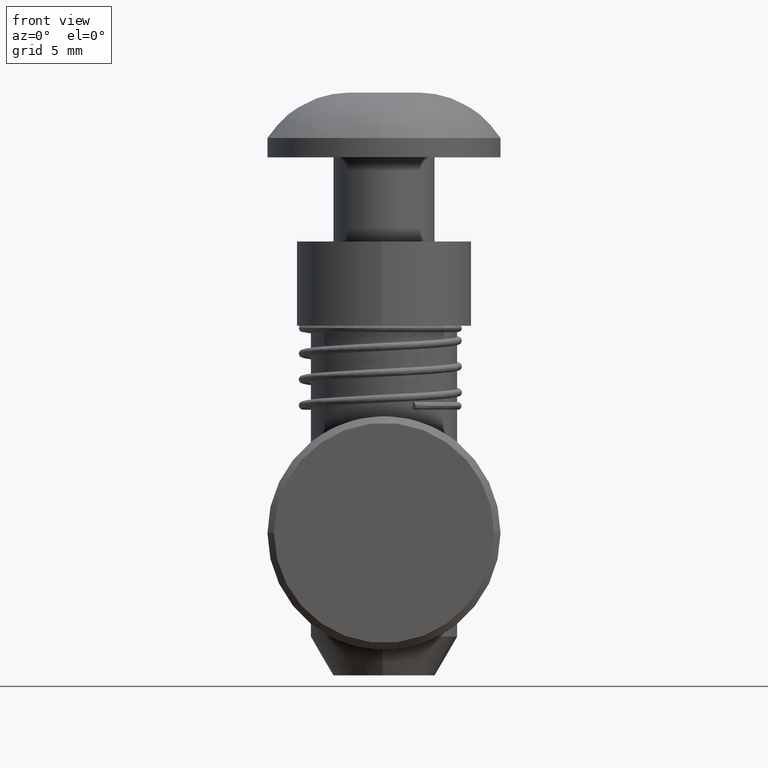
[diagram: clean part render]
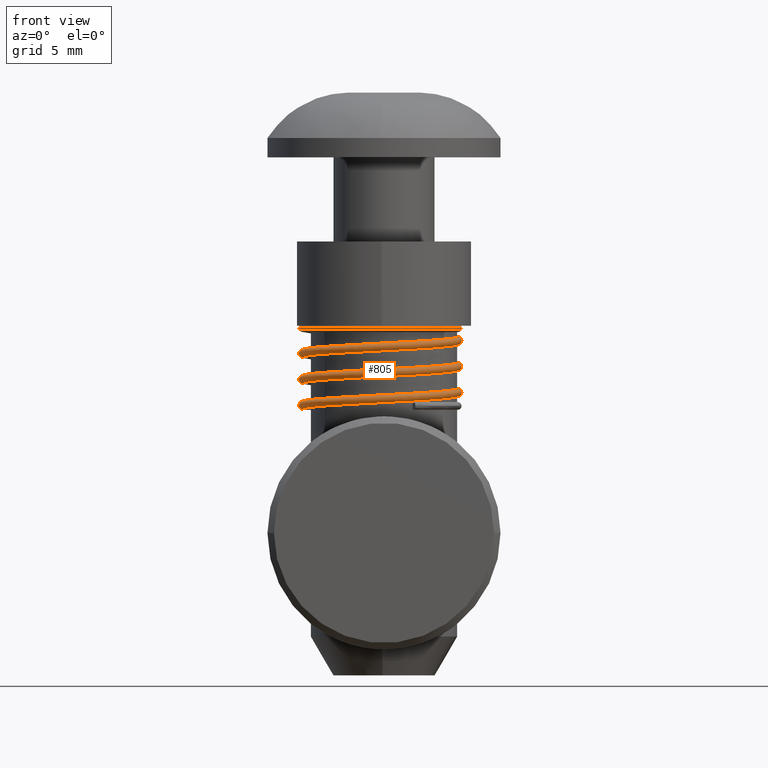
[diagram: same view with one face highlighted and labeled with its STEP entity id]
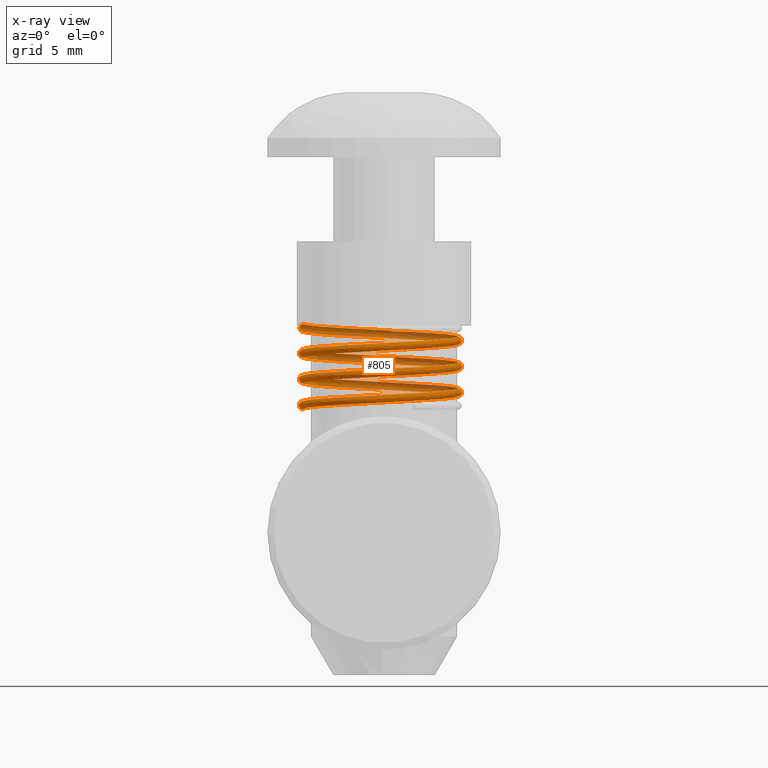
[diagram: x-ray of the same camera — body ghosted, the highlighted face saturated]
A machine part, front view. The second image highlights one B-rep face of the part: STEP entity #805.
The next image is the same camera in x-ray: the body ghosted, the highlighted face saturated — about 42% of this face is hidden behind the body in this view.
In plain terms, the highlighted face is a freeform B-spline surface patch.
Its self-contained STEP definition (entity closure, byte-faithful):
#1 = EDGE_CURVE ( 'NONE', #1532, #65, #78, .T. ) ;
#2 = EDGE_CURVE ( 'NONE', #1538, #1532, #875, .T. ) ;
#3 = EDGE_CURVE ( 'NONE', #1534, #3110, #1435, .T. ) ;
#34 = EDGE_CURVE ( 'NONE', #1530, #1539, #79, .T. ) ;
#39 = EDGE_CURVE ( 'NONE', #65, #1546, #919, .T. ) ;
#51 = EDGE_CURVE ( 'NONE', #1539, #1538, #1238, .T. ) ;
#57 = EDGE_CURVE ( 'NONE', #3110, #1530, #88, .T. ) ;
#61 = EDGE_CURVE ( 'NONE', #1546, #1542, #1245, .T. ) ;
#64 = EDGE_CURVE ( 'NONE', #1542, #1534, #91, .T. ) ;
#65 = VERTEX_POINT ( 'NONE', #198 ) ;
#78 =( BOUNDED_CURVE ( )  B_SPLINE_CURVE ( 2, ( #921, #922, #923, #924, #925, #926, #927, #928, #929, #930, #931, #932, #933, #934, #935, #936, #937, #938, #939, #940, #941, #942, #943, #944, #945, #946, #947, #948, #949, #950, #951, #952, #953, #954, #955, #956, #957 ),
 .UNSPECIFIED., .F., .T. ) 
 B_SPLINE_CURVE_WITH_KNOTS ( ( 3, 2, 2, 2, 2, 2, 2, 2, 2, 2, 2, 2, 2, 2, 2, 2, 2, 2, 3 ),
 ( 0.0000000000000000000, 0.05555555555555591300, 0.1111111111111108300, 0.1666666666666669600, 0.2222222222222219900, 0.2777777777777780100, 0.3333333333333329300, 0.3888888888888889500, 0.4444444444444439800, 0.5000000000000000000, 0.5555555555555559100, 0.6111111111111108300, 0.6666666666666669600, 0.7222222222222218800, 0.7777777777777779000, 0.8333333333333330400, 0.8888888888888889500, 0.9444444444444444200, 1.000000000000000000 ),
 .UNSPECIFIED. ) 
 CURVE ( )  GEOMETRIC_REPRESENTATION_ITEM ( )  RATIONAL_B_SPLINE_CURVE ( ( 1.000000000000000000, 0.8660254037844391500, 1.000000000000000000, 0.8660254037844391500, 1.000000000000000000, 0.8660254037844391500, 1.000000000000000000, 0.8660254037844391500, 1.000000000000000000, 0.8660254037844391500, 1.000000000000000000, 0.8660254037844391500, 1.000000000000000000, 0.8660254037844391500, 1.000000000000000000, 0.8660254037844391500, 1.000000000000000000, 0.8660254037844391500, 1.000000000000000000, 0.8660254037844391500, 1.000000000000000000, 0.8660254037844391500, 1.000000000000000000, 0.8660254037844391500, 1.000000000000000000, 0.8660254037844391500, 1.000000000000000000, 0.8660254037844391500, 1.000000000000000000, 0.8660254037844391500, 1.000000000000000000, 0.8660254037844391500, 1.000000000000000000, 0.8660254037844391500, 1.000000000000000000, 0.8660254037844391500, 1.000000000000000000 ) ) 
 REPRESENTATION_ITEM ( '' )  );
#79 =( BOUNDED_CURVE ( )  B_SPLINE_CURVE ( 2, ( #1147, #1148, #1149, #1150, #1151 ),
 .UNSPECIFIED., .F., .T. ) 
 B_SPLINE_CURVE_WITH_KNOTS ( ( 3, 2, 3 ),
 ( 0.9166666666666666300, 0.9444444444444440900, 1.000000000000000000 ),
 .UNSPECIFIED. ) 
 CURVE ( )  GEOMETRIC_REPRESENTATION_ITEM ( )  RATIONAL_B_SPLINE_CURVE ( ( 0.9330127018922196300, 0.9330127018922196300, 1.000000000000000000, 0.8660254037844391500, 1.000000000000000000 ) ) 
 REPRESENTATION_ITEM ( '' )  );
#88 =( BOUNDED_CURVE ( )  B_SPLINE_CURVE ( 3, ( #118, #119, #120, #121 ),
 .UNSPECIFIED., .F., .F. ) 
 B_SPLINE_CURVE_WITH_KNOTS ( ( 4, 4 ),
 ( 1.518748015271368300E-013, 0.0001745487111604489500 ),
 .UNSPECIFIED. ) 
 CURVE ( )  GEOMETRIC_REPRESENTATION_ITEM ( )  RATIONAL_B_SPLINE_CURVE ( ( 0.6008695571878666100, 0.6782022967236381900, 0.7889166782917558200, 0.9330127018922196300 ) ) 
 REPRESENTATION_ITEM ( '' )  );
#91 =( BOUNDED_CURVE ( )  B_SPLINE_CURVE ( 2, ( #159, #160, #161, #162, #163, #164, #165, #166, #167, #168, #170, #172, #173, #174, #175, #176, #177, #178, #179, #180, #181, #182, #183, #184, #185, #187, #189, #190, #191, #192, #193, #194, #195, #196, #197 ),
 .UNSPECIFIED., .F., .F. ) 
 B_SPLINE_CURVE_WITH_KNOTS ( ( 3, 2, 2, 2, 2, 2, 2, 2, 2, 2, 2, 2, 2, 2, 2, 2, 2, 3 ),
 ( 0.0000000000000000000, 0.05555555555555560800, 0.1111111111111110200, 0.1666666666666670200, 0.2222222222222220400, 0.2777777777777780100, 0.3333333333333330900, 0.3888888888888891200, 0.4444444444444440900, 0.5000000000000000000, 0.5555555555555560200, 0.6111111111111110500, 0.6666666666666670700, 0.7222222222222219900, 0.7777777777777780100, 0.8333333333333330400, 0.8888888888888891700, 0.9007498850838536700 ),
 .UNSPECIFIED. ) 
 CURVE ( )  GEOMETRIC_REPRESENTATION_ITEM ( )  RATIONAL_B_SPLINE_CURVE ( ( 1.000000000000000000, 0.8660254037844391500, 1.000000000000000000, 0.8660254037844391500, 1.000000000000000000, 0.8660254037844391500, 1.000000000000000000, 0.8660254037844391500, 1.000000000000000000, 0.8660254037844391500, 1.000000000000000000, 0.8660254037844391500, 1.000000000000000000, 0.8660254037844391500, 1.000000000000000000, 0.8660254037844391500, 1.000000000000000000, 0.8660254037844391500, 1.000000000000000000, 0.8660254037844391500, 1.000000000000000000, 0.8660254037844391500, 1.000000000000000000, 0.8660254037844391500, 1.000000000000000000, 0.8660254037844391500, 1.000000000000000000, 0.8660254037844391500, 1.000000000000000000, 0.8660254037844391500, 1.000000000000000000, 0.8660254037844391500, 1.000000000000000000, 0.9713967008331756400, 0.9550068920792722500 ) ) 
 REPRESENTATION_ITEM ( '' )  );
#96 =( BOUNDED_SURFACE ( )  B_SPLINE_SURFACE ( 3, 2, ( 
 ( #1696, #1697, #1698, #1699, #1700, #1701, #1702, #1703, #1704, #1705, #1706, #1707, #1708, #1709, #1710, #1711, #1712, #1713, #1714, #1715, #1716, #1717, #1718, #1719, #1720, #1721, #1722, #1723, #1724, #1725, #1726, #1727, #1728, #1729, #1730, #1731, #1732 ),
 ( #1733, #1734, #1735, #1736, #1737, #1738, #1739, #1740, #1741, #1742, #1743, #1744, #1745, #1746, #1747, #1748, #1749, #1750, #1751, #1752, #1753, #1754, #1755, #1756, #1757, #1758, #1759, #1760, #1761, #1762, #1763, #1764, #1765, #1766, #1767, #1768, #1769 ),
 ( #1770, #1771, #1772, #1773, #1774, #1775, #1776, #1777, #1778, #1779, #1780, #1781, #1782, #1783, #1784, #1785, #1786, #1787, #1788, #1789, #1790, #1791, #1792, #1793, #1794, #1795, #1796, #1797, #1798, #1799, #1800, #1801, #1802, #1803, #1804, #1805, #1806 ),
 ( #1807, #1808, #1809, #1810, #1811, #1812, #1813, #1814, #1815, #1816, #1817, #1818, #1819, #1820, #1821, #1822, #1823, #1824, #1825, #1826, #1827, #1828, #1829, #1830, #1831, #1832, #1833, #1834, #1835, #1836, #1837, #1838, #1839, #1840, #1841, #1842, #1843 ) ),
 .UNSPECIFIED., .F., .F., .F. ) 
 B_SPLINE_SURFACE_WITH_KNOTS ( ( 4, 4 ),
 ( 3, 2, 2, 2, 2, 2, 2, 2, 2, 2, 2, 2, 2, 2, 2, 2, 2, 2, 3 ),
 ( 0.0000000000000000000, 0.5000000000000000000 ),
 ( 0.0000000000000000000, 0.05555555555555560800, 0.1111111111111110200, 0.1666666666666670200, 0.2222222222222220400, 0.2777777777777780700, 0.3333333333333330400, 0.3888888888888891700, 0.4444444444444440900, 0.5000000000000000000, 0.5555555555555560200, 0.6111111111111110500, 0.6666666666666670700, 0.7222222222222219900, 0.7777777777777780100, 0.8333333333333330400, 0.8888888888888891700, 0.9444444444444440900, 1.000000000000000000 ),
 .UNSPECIFIED. ) 
 GEOMETRIC_REPRESENTATION_ITEM ( )  RATIONAL_B_SPLINE_SURFACE ( (
 ( 1.000000000000000000, 0.8660254037844391500, 1.000000000000000000, 0.8660254037844391500, 1.000000000000000000, 0.8660254037844391500, 1.000000000000000000, 0.8660254037844391500, 1.000000000000000000, 0.8660254037844391500, 1.000000000000000000, 0.8660254037844391500, 1.000000000000000000, 0.8660254037844391500, 1.000000000000000000, 0.8660254037844391500, 1.000000000000000000, 0.8660254037844391500, 1.000000000000000000, 0.8660254037844391500, 1.000000000000000000, 0.8660254037844391500, 1.000000000000000000, 0.8660254037844391500, 1.000000000000000000, 0.8660254037844391500, 1.000000000000000000, 0.8660254037844391500, 1.000000000000000000, 0.8660254037844391500, 1.000000000000000000, 0.8660254037844391500, 1.000000000000000000, 0.8660254037844391500, 1.000000000000000000, 0.8660254037844391500, 1.000000000000000000),
 ( 0.3333333333333340400, 0.2886751345948130300, 0.3333333333333340400, 0.2886751345948130300, 0.3333333333333340400, 0.2886751345948130300, 0.3333333333333340400, 0.2886751345948130300, 0.3333333333333340400, 0.2886751345948130300, 0.3333333333333340400, 0.2886751345948130300, 0.3333333333333340400, 0.2886751345948130300, 0.3333333333333340400, 0.2886751345948130300, 0.3333333333333340400, 0.2886751345948130300, 0.3333333333333340400, 0.2886751345948130300, 0.3333333333333340400, 0.2886751345948130300, 0.3333333333333340400, 0.2886751345948130300, 0.3333333333333340400, 0.2886751345948130300, 0.3333333333333340400, 0.2886751345948130300, 0.3333333333333340400, 0.2886751345948130300, 0.3333333333333340400, 0.2886751345948130300, 0.3333333333333340400, 0.2886751345948130300, 0.3333333333333340400, 0.2886751345948130300, 0.3333333333333340400),
 ( 0.3333333333333330400, 0.2886751345948120300, 0.3333333333333330400, 0.2886751345948120300, 0.3333333333333330400, 0.2886751345948120300, 0.3333333333333330400, 0.2886751345948120300, 0.3333333333333330400, 0.2886751345948120300, 0.3333333333333330400, 0.2886751345948120300, 0.3333333333333330400, 0.2886751345948120300, 0.3333333333333330400, 0.2886751345948120300, 0.3333333333333330400, 0.2886751345948120300, 0.3333333333333330400, 0.2886751345948120300, 0.3333333333333330400, 0.2886751345948120300, 0.3333333333333330400, 0.2886751345948120300, 0.3333333333333330400, 0.2886751345948120300, 0.3333333333333330400, 0.2886751345948120300, 0.3333333333333330400, 0.2886751345948120300, 0.3333333333333330400, 0.2886751345948120300, 0.3333333333333330400, 0.2886751345948120300, 0.3333333333333330400, 0.2886751345948120300, 0.3333333333333330400),
 ( 1.000000000000000000, 0.8660254037844391500, 1.000000000000000000, 0.8660254037844391500, 1.000000000000000000, 0.8660254037844391500, 1.000000000000000000, 0.8660254037844391500, 1.000000000000000000, 0.8660254037844391500, 1.000000000000000000, 0.8660254037844391500, 1.000000000000000000, 0.8660254037844391500, 1.000000000000000000, 0.8660254037844391500, 1.000000000000000000, 0.8660254037844391500, 1.000000000000000000, 0.8660254037844391500, 1.000000000000000000, 0.8660254037844391500, 1.000000000000000000, 0.8660254037844391500, 1.000000000000000000, 0.8660254037844391500, 1.000000000000000000, 0.8660254037844391500, 1.000000000000000000, 0.8660254037844391500, 1.000000000000000000, 0.8660254037844391500, 1.000000000000000000, 0.8660254037844391500, 1.000000000000000000, 0.8660254037844391500, 1.000000000000000000) ) ) 
 REPRESENTATION_ITEM ( '' )  SURFACE ( )  );
#118 = CARTESIAN_POINT ( 'NONE',  ( 0.0000000000000000000, 6.165831239628167800, -5.750000000128360400 ) ) ;
#119 = CARTESIAN_POINT ( 'NONE',  ( 0.0000000000000000000, 6.112714336002199800, -5.785233767773888800 ) ) ;
#120 = CARTESIAN_POINT ( 'NONE',  ( 0.0000000000000000000, 6.054795149198174200, -5.800000000000000700 ) ) ;
#121 = CARTESIAN_POINT ( 'NONE',  ( 0.0000000000000000000, 6.000000000011744400, -5.800000000000000700 ) ) ;
#147 = CARTESIAN_POINT ( 'NONE',  ( 6.000000000000000000, 0.0000000000000000000, 0.0000000000000000000 ) ) ;
#148 = DIRECTION ( 'NONE',  ( -0.0000000000000000000, 1.000000000000000000, -0.0000000000000000000 ) ) ;
#149 = DIRECTION ( 'NONE',  ( 0.0000000000000000000, 0.0000000000000000000, 1.000000000000000000 ) ) ;
#159 = CARTESIAN_POINT ( 'NONE',  ( 6.000000000000000900, 0.0000000000000000000, -0.2999999999999999900 ) ) ;
#160 = CARTESIAN_POINT ( 'NONE',  ( 6.000000000000000000, -3.464101615000000600, -0.4666666670000001500 ) ) ;
#161 = CARTESIAN_POINT ( 'NONE',  ( 3.000000000000000000, -5.196152423000000000, -0.6333333330000000500 ) ) ;
#162 = CARTESIAN_POINT ( 'NONE',  ( 0.0000000000000000000, -6.928203230000001200, -0.8000000000000000400 ) ) ;
#163 = CARTESIAN_POINT ( 'NONE',  ( -3.000000000000000000, -5.196152423000000000, -0.9666666670000000300 ) ) ;
#164 = CARTESIAN_POINT ( 'NONE',  ( -6.000000000000000000, -3.464101615000000600, -1.133333333000000200 ) ) ;
#165 = CARTESIAN_POINT ( 'NONE',  ( -6.000000000000000000, 0.0000000000000000000, -1.300000000000000300 ) ) ;
#166 = CARTESIAN_POINT ( 'NONE',  ( -6.000000000000000000, 3.464101615000000600, -1.466666666999999900 ) ) ;
#167 = CARTESIAN_POINT ( 'NONE',  ( -3.000000000000000000, 5.196152423000000000, -1.633333332999999900 ) ) ;
#168 = CARTESIAN_POINT ( 'NONE',  ( 0.0000000000000000000, 6.928203230000001200, -1.800000000000000300 ) ) ;
#170 = CARTESIAN_POINT ( 'NONE',  ( 3.000000000000000000, 5.196152423000000000, -1.966666666999999700 ) ) ;
#172 = CARTESIAN_POINT ( 'NONE',  ( 6.000000000000000000, 3.464101615000000600, -2.133333332999999900 ) ) ;
#173 = CARTESIAN_POINT ( 'NONE',  ( 6.000000000000000000, 0.0000000000000000000, -2.299999999999999800 ) ) ;
#174 = CARTESIAN_POINT ( 'NONE',  ( 6.000000000000000000, -3.464101615000000600, -2.466666666999999700 ) ) ;
#175 = CARTESIAN_POINT ( 'NONE',  ( 3.000000000000000000, -5.196152423000000000, -2.633333332999999900 ) ) ;
#176 = CARTESIAN_POINT ( 'NONE',  ( 0.0000000000000000000, -6.928203230000001200, -2.799999999999999400 ) ) ;
#177 = CARTESIAN_POINT ( 'NONE',  ( -3.000000000000000000, -5.196152423000000000, -2.966666666999999700 ) ) ;
#178 = CARTESIAN_POINT ( 'NONE',  ( -6.000000000000000000, -3.464101615000000600, -3.133333333000000400 ) ) ;
#179 = CARTESIAN_POINT ( 'NONE',  ( -6.000000000000000000, 0.0000000000000000000, -3.299999999999999800 ) ) ;
#180 = CARTESIAN_POINT ( 'NONE',  ( -6.000000000000000000, 3.464101615000000600, -3.466666666999999300 ) ) ;
#181 = CARTESIAN_POINT ( 'NONE',  ( -3.000000000000000000, 5.196152423000000000, -3.633333332999999900 ) ) ;
#182 = CARTESIAN_POINT ( 'NONE',  ( 0.0000000000000000000, 6.928203230000001200, -3.799999999999998900 ) ) ;
#183 = CARTESIAN_POINT ( 'NONE',  ( 3.000000000000000000, 5.196152423000000000, -3.966666667000000100 ) ) ;
#184 = CARTESIAN_POINT ( 'NONE',  ( 6.000000000000000000, 3.464101615000000600, -4.133333333000000400 ) ) ;
#185 = CARTESIAN_POINT ( 'NONE',  ( 6.000000000000000000, 0.0000000000000000000, -4.299999999999999800 ) ) ;
#187 = CARTESIAN_POINT ( 'NONE',  ( 6.000000000000000000, -3.464101615000000600, -4.466666667000000100 ) ) ;
#189 = CARTESIAN_POINT ( 'NONE',  ( 3.000000000000000000, -5.196152423000000000, -4.633333333000000400 ) ) ;
#190 = CARTESIAN_POINT ( 'NONE',  ( 0.0000000000000000000, -6.928203230000001200, -4.799999999999999800 ) ) ;
#191 = CARTESIAN_POINT ( 'NONE',  ( -3.000000000000000000, -5.196152423000000000, -4.966666667000000100 ) ) ;
#192 = CARTESIAN_POINT ( 'NONE',  ( -6.000000000000000000, -3.464101615000000600, -5.133333333000000400 ) ) ;
#193 = CARTESIAN_POINT ( 'NONE',  ( -6.000000000000000000, 0.0000000000000000000, -5.299999999999999800 ) ) ;
#194 = CARTESIAN_POINT ( 'NONE',  ( -6.000000000000000000, 3.464101615000000600, -5.466666667000001000 ) ) ;
#195 = CARTESIAN_POINT ( 'NONE',  ( -3.000000000000000000, 5.196152423000000000, -5.633333333000000400 ) ) ;
#196 = CARTESIAN_POINT ( 'NONE',  ( -2.428983136805118000, 5.525829162569101200, -5.665056492129829200 ) ) ;
#197 = CARTESIAN_POINT ( 'NONE',  ( -1.800000005439359500, 5.723635206887379900, -5.699999999497435100 ) ) ;
#198 = CARTESIAN_POINT ( 'NONE',  ( 6.000000000000000900, 0.0000000000000000000, 0.2999999999999999900 ) ) ;
#805 = ADVANCED_FACE ( 'NONE', ( #1259 ), #96, .F. ) ;
#875 = CIRCLE ( 'NONE', #1512, 0.2999999999999999300 ) ;
#919 = CIRCLE ( 'NONE', #3128, 0.2999999999999999300 ) ;
#921 = CARTESIAN_POINT ( 'NONE',  ( 6.000000000000000900, 0.0000000000000000000, -5.700000000000000200 ) ) ;
#922 = CARTESIAN_POINT ( 'NONE',  ( 6.000000000000000000, 3.464101615000000600, -5.533333333000000700 ) ) ;
#923 = CARTESIAN_POINT ( 'NONE',  ( 3.000000000000000000, 5.196152423000000000, -5.366666666999999600 ) ) ;
#924 = CARTESIAN_POINT ( 'NONE',  ( 0.0000000000000000000, 6.928203230000001200, -5.200000000000001100 ) ) ;
#925 = CARTESIAN_POINT ( 'NONE',  ( -3.000000000000000000, 5.196152423000000000, -5.033333333000000700 ) ) ;
#926 = CARTESIAN_POINT ( 'NONE',  ( -6.000000000000000000, 3.464101615000000600, -4.866666667000000500 ) ) ;
#927 = CARTESIAN_POINT ( 'NONE',  ( -6.000000000000000000, 0.0000000000000000000, -4.700000000000000200 ) ) ;
#928 = CARTESIAN_POINT ( 'NONE',  ( -6.000000000000000000, -3.464101615000000600, -4.533333332999999900 ) ) ;
#929 = CARTESIAN_POINT ( 'NONE',  ( -3.000000000000000000, -5.196152423000000000, -4.366666666999999600 ) ) ;
#930 = CARTESIAN_POINT ( 'NONE',  ( 0.0000000000000000000, -6.928203230000001200, -4.200000000000000200 ) ) ;
#931 = CARTESIAN_POINT ( 'NONE',  ( 3.000000000000000000, -5.196152423000000000, -4.033333333000000700 ) ) ;
#932 = CARTESIAN_POINT ( 'NONE',  ( 6.000000000000000000, -3.464101615000000600, -3.866666667000000100 ) ) ;
#933 = CARTESIAN_POINT ( 'NONE',  ( 6.000000000000000000, 0.0000000000000000000, -3.700000000000000200 ) ) ;
#934 = CARTESIAN_POINT ( 'NONE',  ( 6.000000000000000000, 3.464101615000000600, -3.533333332999999400 ) ) ;
#935 = CARTESIAN_POINT ( 'NONE',  ( 3.000000000000000000, 5.196152423000000000, -3.366666667000000100 ) ) ;
#936 = CARTESIAN_POINT ( 'NONE',  ( 0.0000000000000000000, 6.928203230000001200, -3.200000000000000200 ) ) ;
#937 = CARTESIAN_POINT ( 'NONE',  ( -3.000000000000000000, 5.196152423000000000, -3.033333332999999900 ) ) ;
#938 = CARTESIAN_POINT ( 'NONE',  ( -6.000000000000000000, 3.464101615000000600, -2.866666667000000100 ) ) ;
#939 = CARTESIAN_POINT ( 'NONE',  ( -6.000000000000000000, 0.0000000000000000000, -2.700000000000000200 ) ) ;
#940 = CARTESIAN_POINT ( 'NONE',  ( -6.000000000000000000, -3.464101615000000600, -2.533333333000000300 ) ) ;
#941 = CARTESIAN_POINT ( 'NONE',  ( -3.000000000000000000, -5.196152423000000000, -2.366666667000000100 ) ) ;
#942 = CARTESIAN_POINT ( 'NONE',  ( 0.0000000000000000000, -6.928203230000001200, -2.200000000000000200 ) ) ;
#943 = CARTESIAN_POINT ( 'NONE',  ( 3.000000000000000000, -5.196152423000000000, -2.033333332999999900 ) ) ;
#944 = CARTESIAN_POINT ( 'NONE',  ( 6.000000000000000000, -3.464101615000000600, -1.866666666999999600 ) ) ;
#945 = CARTESIAN_POINT ( 'NONE',  ( 6.000000000000000000, 0.0000000000000000000, -1.700000000000000200 ) ) ;
#946 = CARTESIAN_POINT ( 'NONE',  ( 6.000000000000000000, 3.464101615000000600, -1.533333333000000100 ) ) ;
#947 = CARTESIAN_POINT ( 'NONE',  ( 3.000000000000000000, 5.196152423000000000, -1.366666666999999800 ) ) ;
#948 = CARTESIAN_POINT ( 'NONE',  ( 0.0000000000000000000, 6.928203230000001200, -1.200000000000000000 ) ) ;
#949 = CARTESIAN_POINT ( 'NONE',  ( -3.000000000000000000, 5.196152423000000000, -1.033333332999999900 ) ) ;
#950 = CARTESIAN_POINT ( 'NONE',  ( -6.000000000000000000, 3.464101615000000600, -0.8666666670000000600 ) ) ;
#951 = CARTESIAN_POINT ( 'NONE',  ( -6.000000000000000000, 0.0000000000000000000, -0.7000000000000000700 ) ) ;
#952 = CARTESIAN_POINT ( 'NONE',  ( -6.000000000000000000, -3.464101615000000600, -0.5333333329999999700 ) ) ;
#953 = CARTESIAN_POINT ( 'NONE',  ( -3.000000000000000000, -5.196152423000000000, -0.3666666670000001100 ) ) ;
#954 = CARTESIAN_POINT ( 'NONE',  ( 0.0000000000000000000, -6.928203230000001200, -0.2000000000000000100 ) ) ;
#955 = CARTESIAN_POINT ( 'NONE',  ( 3.000000000000000000, -5.196152423000000000, -0.03333333300000001400 ) ) ;
#956 = CARTESIAN_POINT ( 'NONE',  ( 6.000000000000000000, -3.464101615000000600, 0.1333333330000000000 ) ) ;
#957 = CARTESIAN_POINT ( 'NONE',  ( 6.000000000000000900, 0.0000000000000000000, 0.2999999999999999900 ) ) ;
#958 = CARTESIAN_POINT ( 'NONE',  ( 6.000000000000000000, 0.0000000000000000000, -6.000000000000000000 ) ) ;
#959 = DIRECTION ( 'NONE',  ( -0.0000000000000000000, -1.000000000000000000, -0.0000000000000000000 ) ) ;
#960 = DIRECTION ( 'NONE',  ( 0.0000000000000000000, 0.0000000000000000000, -1.000000000000000000 ) ) ;
#961 = CARTESIAN_POINT ( 'NONE',  ( -1.800000005439359500, 5.723635206887379900, -5.699999999497435100 ) ) ;
#962 = CARTESIAN_POINT ( 'NONE',  ( -1.801523066940337700, 5.728478265481133000, -5.700000000001089100 ) ) ;
#963 = CARTESIAN_POINT ( 'NONE',  ( -1.798448344967381400, 5.733371705571615400, -5.700116504152990000 ) ) ;
#964 = CARTESIAN_POINT ( 'NONE',  ( -1.792238280066827900, 5.741219877314455800, -5.700335331013143000 ) ) ;
#965 = CARTESIAN_POINT ( 'NONE',  ( -1.788639387743559100, 5.744570793696672300, -5.700452574451571100 ) ) ;
#966 = CARTESIAN_POINT ( 'NONE',  ( -1.777413971594689900, 5.754125954394425000, -5.700811034261917600 ) ) ;
#967 = CARTESIAN_POINT ( 'NONE',  ( -1.769247315730067700, 5.759750731536127200, -5.701061141121865500 ) ) ;
#968 = CARTESIAN_POINT ( 'NONE',  ( -1.744393488256532000, 5.775721961945068400, -5.701813044682785900 ) ) ;
#969 = CARTESIAN_POINT ( 'NONE',  ( -1.727166557771898400, 5.785138766167503600, -5.702320904115769200 ) ) ;
#970 = CARTESIAN_POINT ( 'NONE',  ( -1.674809389129967600, 5.812123543625071800, -5.703851756538086600 ) ) ;
#971 = CARTESIAN_POINT ( 'NONE',  ( -1.638860507559122900, 5.828257032405191200, -5.704884269814010100 ) ) ;
#972 = CARTESIAN_POINT ( 'NONE',  ( -1.530341773680880000, 5.873948275648407600, -5.707980939190955300 ) ) ;
#973 = CARTESIAN_POINT ( 'NONE',  ( -1.456719165821296300, 5.900714262240609500, -5.710053124993343100 ) ) ;
#974 = CARTESIAN_POINT ( 'NONE',  ( -1.233638726874410900, 5.974608149170459000, -5.716296212978330800 ) ) ;
#975 = CARTESIAN_POINT ( 'NONE',  ( -1.081516208370356900, 6.015049627796179800, -5.720503059015575400 ) ) ;
#976 = CARTESIAN_POINT ( 'NONE',  ( -0.6232708308326274600, 6.114857933577375200, -5.733104410119188400 ) ) ;
#977 = CARTESIAN_POINT ( 'NONE',  ( -0.3135355649654893400, 6.153054572514767200, -5.741524917856870600 ) ) ;
#978 = CARTESIAN_POINT ( 'NONE',  ( 0.0000000000000000000, 6.165831239628167800, -5.750000000128360400 ) ) ;
#1147 = CARTESIAN_POINT ( 'NONE',  ( 0.0000000000000000000, 6.000000000011744400, -5.800000000000000700 ) ) ;
#1148 = CARTESIAN_POINT ( 'NONE',  ( 1.607695154586736000, 6.000000000029352500, -5.889316397655673700 ) ) ;
#1149 = CARTESIAN_POINT ( 'NONE',  ( 3.000000000000000000, 5.196152423000000000, -5.966666667000000100 ) ) ;
#1150 = CARTESIAN_POINT ( 'NONE',  ( 6.000000000000000000, 3.464101615000000600, -6.133333333000000400 ) ) ;
#1151 = CARTESIAN_POINT ( 'NONE',  ( 6.000000000000000900, 0.0000000000000000000, -6.299999999999999800 ) ) ;
#1171 = CARTESIAN_POINT ( 'NONE',  ( 6.000000000000000000, 0.0000000000000000000, 0.0000000000000000000 ) ) ;
#1172 = DIRECTION ( 'NONE',  ( -0.0000000000000000000, 1.000000000000000000, -0.0000000000000000000 ) ) ;
#1173 = DIRECTION ( 'NONE',  ( 0.0000000000000000000, 0.0000000000000000000, 1.000000000000000000 ) ) ;
#1216 = CARTESIAN_POINT ( 'NONE',  ( 6.000000000000000000, 0.0000000000000000000, -6.000000000000000000 ) ) ;
#1217 = DIRECTION ( 'NONE',  ( 0.0000000000000000000, -1.000000000000000000, -0.0000000000000000000 ) ) ;
#1218 = DIRECTION ( 'NONE',  ( 0.0000000000000000000, 0.0000000000000000000, -1.000000000000000000 ) ) ;
#1238 = CIRCLE ( 'NONE', #2798, 0.2999999999999999300 ) ;
#1245 = CIRCLE ( 'NONE', #2803, 0.2999999999999999300 ) ;
#1259 = FACE_OUTER_BOUND ( 'NONE', #1458, .T. ) ;
#1375 = ORIENTED_EDGE ( 'NONE', *, *, #39, .F. ) ;
#1376 = ORIENTED_EDGE ( 'NONE', *, *, #1, .F. ) ;
#1377 = ORIENTED_EDGE ( 'NONE', *, *, #2, .F. ) ;
#1378 = ORIENTED_EDGE ( 'NONE', *, *, #34, .F. ) ;
#1379 = ORIENTED_EDGE ( 'NONE', *, *, #51, .F. ) ;
#1381 = ORIENTED_EDGE ( 'NONE', *, *, #57, .F. ) ;
#1435 = B_SPLINE_CURVE_WITH_KNOTS ( 'NONE', 3,
 ( #961, #962, #963, #964, #965, #966, #967, #968, #969, #970, #971, #972, #973, #974, #975, #976, #977, #978 ),
 .UNSPECIFIED., .F., .F.,
 ( 4, 2, 2, 2, 2, 2, 2, 2, 4 ),
 ( 1.793501302862484300E-012, 1.495029397719571300E-005, 2.990058616089012200E-005, 5.980117052828014800E-005, 0.0001196023392630582200, 0.0002392046767326150100, 0.0004784093516717275500, 0.0009568187015499542100, 0.001913637401306406700 ),
 .UNSPECIFIED. ) ;
#1458 = EDGE_LOOP ( 'NONE', ( #1375, #1376, #1377, #1379, #1378, #1381, #2980, #2977, #2979 ) ) ;
#1512 = AXIS2_PLACEMENT_3D ( 'NONE', #958, #959, #960 ) ;
#1530 = VERTEX_POINT ( 'NONE', #2296 ) ;
#1532 = VERTEX_POINT ( 'NONE', #2298 ) ;
#1534 = VERTEX_POINT ( 'NONE', #2300 ) ;
#1538 = VERTEX_POINT ( 'NONE', #2304 ) ;
#1539 = VERTEX_POINT ( 'NONE', #2305 ) ;
#1542 = VERTEX_POINT ( 'NONE', #2308 ) ;
#1546 = VERTEX_POINT ( 'NONE', #2312 ) ;
#1696 = CARTESIAN_POINT ( 'NONE',  ( 6.000000000000000000, 0.0000000000000000000, 0.3000000000000000400 ) ) ;
#1697 = CARTESIAN_POINT ( 'NONE',  ( 6.000000000000000900, -3.464101615000000100, 0.1333333330000000000 ) ) ;
#1698 = CARTESIAN_POINT ( 'NONE',  ( 3.000000000000000000, -5.196152423000000000, -0.03333333300000001400 ) ) ;
#1699 = CARTESIAN_POINT ( 'NONE',  ( 0.0000000000000000000, -6.928203230000000300, -0.2000000000000000100 ) ) ;
#1700 = CARTESIAN_POINT ( 'NONE',  ( -3.000000000000000000, -5.196152423000000000, -0.3666666670000001100 ) ) ;
#1701 = CARTESIAN_POINT ( 'NONE',  ( -6.000000000000000900, -3.464101615000000100, -0.5333333329999999700 ) ) ;
#1702 = CARTESIAN_POINT ( 'NONE',  ( -6.000000000000000000, 0.0000000000000000000, -0.7000000000000000700 ) ) ;
#1703 = CARTESIAN_POINT ( 'NONE',  ( -6.000000000000000900, 3.464101615000000100, -0.8666666670000000600 ) ) ;
#1704 = CARTESIAN_POINT ( 'NONE',  ( -3.000000000000000000, 5.196152423000000000, -1.033333332999999900 ) ) ;
#1705 = CARTESIAN_POINT ( 'NONE',  ( 0.0000000000000000000, 6.928203230000000300, -1.200000000000000000 ) ) ;
#1706 = CARTESIAN_POINT ( 'NONE',  ( 3.000000000000000000, 5.196152423000000000, -1.366666666999999800 ) ) ;
#1707 = CARTESIAN_POINT ( 'NONE',  ( 6.000000000000000900, 3.464101615000000100, -1.533333333000000100 ) ) ;
#1708 = CARTESIAN_POINT ( 'NONE',  ( 6.000000000000000000, 0.0000000000000000000, -1.700000000000000200 ) ) ;
#1709 = CARTESIAN_POINT ( 'NONE',  ( 6.000000000000000900, -3.464101615000000100, -1.866666666999999400 ) ) ;
#1710 = CARTESIAN_POINT ( 'NONE',  ( 3.000000000000000000, -5.196152423000000000, -2.033333332999999900 ) ) ;
#1711 = CARTESIAN_POINT ( 'NONE',  ( 0.0000000000000000000, -6.928203230000000300, -2.200000000000000200 ) ) ;
#1712 = CARTESIAN_POINT ( 'NONE',  ( -3.000000000000000000, -5.196152423000000000, -2.366666667000000100 ) ) ;
#1713 = CARTESIAN_POINT ( 'NONE',  ( -6.000000000000000900, -3.464101615000000100, -2.533333333000000300 ) ) ;
#1714 = CARTESIAN_POINT ( 'NONE',  ( -6.000000000000000000, 0.0000000000000000000, -2.700000000000000200 ) ) ;
#1715 = CARTESIAN_POINT ( 'NONE',  ( -6.000000000000000900, 3.464101615000000100, -2.866666666999999200 ) ) ;
#1716 = CARTESIAN_POINT ( 'NONE',  ( -3.000000000000000000, 5.196152423000000000, -3.033333332999999900 ) ) ;
#1717 = CARTESIAN_POINT ( 'NONE',  ( 0.0000000000000000000, 6.928203230000000300, -3.200000000000000200 ) ) ;
#1718 = CARTESIAN_POINT ( 'NONE',  ( 3.000000000000000000, 5.196152423000000000, -3.366666667000000100 ) ) ;
#1719 = CARTESIAN_POINT ( 'NONE',  ( 6.000000000000000900, 3.464101615000000100, -3.533333332999999400 ) ) ;
#1720 = CARTESIAN_POINT ( 'NONE',  ( 6.000000000000000000, 0.0000000000000000000, -3.700000000000000200 ) ) ;
#1721 = CARTESIAN_POINT ( 'NONE',  ( 6.000000000000000900, -3.464101615000000100, -3.866666667000000100 ) ) ;
#1722 = CARTESIAN_POINT ( 'NONE',  ( 3.000000000000000000, -5.196152423000000000, -4.033333333000000700 ) ) ;
#1723 = CARTESIAN_POINT ( 'NONE',  ( 0.0000000000000000000, -6.928203230000000300, -4.200000000000001100 ) ) ;
#1724 = CARTESIAN_POINT ( 'NONE',  ( -3.000000000000000000, -5.196152423000000000, -4.366666666999999600 ) ) ;
#1725 = CARTESIAN_POINT ( 'NONE',  ( -6.000000000000000900, -3.464101615000000100, -4.533333332999999000 ) ) ;
#1726 = CARTESIAN_POINT ( 'NONE',  ( -6.000000000000000000, 0.0000000000000000000, -4.700000000000000200 ) ) ;
#1727 = CARTESIAN_POINT ( 'NONE',  ( -6.000000000000000900, 3.464101615000000100, -4.866666667000000500 ) ) ;
#1728 = CARTESIAN_POINT ( 'NONE',  ( -3.000000000000000000, 5.196152423000000000, -5.033333333000000700 ) ) ;
#1729 = CARTESIAN_POINT ( 'NONE',  ( 0.0000000000000000000, 6.928203230000000300, -5.200000000000000200 ) ) ;
#1730 = CARTESIAN_POINT ( 'NONE',  ( 3.000000000000000000, 5.196152423000000000, -5.366666666999999600 ) ) ;
#1731 = CARTESIAN_POINT ( 'NONE',  ( 6.000000000000000900, 3.464101615000000100, -5.533333333000000700 ) ) ;
#1732 = CARTESIAN_POINT ( 'NONE',  ( 6.000000000000000000, 0.0000000000000000000, -5.700000000000000200 ) ) ;
#1733 = CARTESIAN_POINT ( 'NONE',  ( 6.599999999999999600, 0.0000000000000000000, 0.3000000000000000400 ) ) ;
#1734 = CARTESIAN_POINT ( 'NONE',  ( 6.599999999999999600, -3.810511776999999900, 0.1333333330000000000 ) ) ;
#1735 = CARTESIAN_POINT ( 'NONE',  ( 3.299999999999999800, -5.715767665000000400, -0.03333333300000002100 ) ) ;
#1736 = CARTESIAN_POINT ( 'NONE',  ( 0.0000000000000000000, -7.621023553000000600, -0.2000000000000000100 ) ) ;
#1737 = CARTESIAN_POINT ( 'NONE',  ( -3.299999999999999800, -5.715767665000000400, -0.3666666670000001700 ) ) ;
#1738 = CARTESIAN_POINT ( 'NONE',  ( -6.599999999999999600, -3.810511776999999900, -0.5333333329999998500 ) ) ;
#1739 = CARTESIAN_POINT ( 'NONE',  ( -6.599999999999999600, 0.0000000000000000000, -0.7000000000000000700 ) ) ;
#1740 = CARTESIAN_POINT ( 'NONE',  ( -6.599999999999999600, 3.810511776999999900, -0.8666666669999999500 ) ) ;
#1741 = CARTESIAN_POINT ( 'NONE',  ( -3.299999999999999800, 5.715767665000000400, -1.033333332999999900 ) ) ;
#1742 = CARTESIAN_POINT ( 'NONE',  ( 0.0000000000000000000, 7.621023553000000600, -1.200000000000000000 ) ) ;
#1743 = CARTESIAN_POINT ( 'NONE',  ( 3.299999999999999800, 5.715767665000000400, -1.366666667000000100 ) ) ;
#1744 = CARTESIAN_POINT ( 'NONE',  ( 6.599999999999999600, 3.810511776999999900, -1.533333332999999900 ) ) ;
#1745 = CARTESIAN_POINT ( 'NONE',  ( 6.599999999999999600, 0.0000000000000000000, -1.700000000000000000 ) ) ;
#1746 = CARTESIAN_POINT ( 'NONE',  ( 6.599999999999999600, -3.810511776999999900, -1.866666666999999600 ) ) ;
#1747 = CARTESIAN_POINT ( 'NONE',  ( 3.299999999999999800, -5.715767665000000400, -2.033333333000000300 ) ) ;
#1748 = CARTESIAN_POINT ( 'NONE',  ( 0.0000000000000000000, -7.621023553000000600, -2.200000000000000200 ) ) ;
#1749 = CARTESIAN_POINT ( 'NONE',  ( -3.299999999999999800, -5.715767665000000400, -2.366666667000000100 ) ) ;
#1750 = CARTESIAN_POINT ( 'NONE',  ( -6.599999999999999600, -3.810511776999999900, -2.533333332999999900 ) ) ;
#1751 = CARTESIAN_POINT ( 'NONE',  ( -6.599999999999999600, 0.0000000000000000000, -2.700000000000000200 ) ) ;
#1752 = CARTESIAN_POINT ( 'NONE',  ( -6.599999999999999600, 3.810511776999999900, -2.866666666999999600 ) ) ;
#1753 = CARTESIAN_POINT ( 'NONE',  ( -3.299999999999999800, 5.715767665000000400, -3.033333333000000300 ) ) ;
#1754 = CARTESIAN_POINT ( 'NONE',  ( 0.0000000000000000000, 7.621023553000000600, -3.200000000000000200 ) ) ;
#1755 = CARTESIAN_POINT ( 'NONE',  ( 3.299999999999999800, 5.715767665000000400, -3.366666667000000500 ) ) ;
#1756 = CARTESIAN_POINT ( 'NONE',  ( 6.599999999999999600, 3.810511776999999900, -3.533333332999999900 ) ) ;
#1757 = CARTESIAN_POINT ( 'NONE',  ( 6.599999999999999600, 0.0000000000000000000, -3.700000000000000200 ) ) ;
#1758 = CARTESIAN_POINT ( 'NONE',  ( 6.599999999999999600, -3.810511776999999900, -3.866666667000000100 ) ) ;
#1759 = CARTESIAN_POINT ( 'NONE',  ( 3.299999999999999800, -5.715767665000000400, -4.033333333000000700 ) ) ;
#1760 = CARTESIAN_POINT ( 'NONE',  ( 0.0000000000000000000, -7.621023553000000600, -4.200000000000000200 ) ) ;
#1761 = CARTESIAN_POINT ( 'NONE',  ( -3.299999999999999800, -5.715767665000000400, -4.366666666999999600 ) ) ;
#1762 = CARTESIAN_POINT ( 'NONE',  ( -6.599999999999999600, -3.810511776999999900, -4.533333332999999000 ) ) ;
#1763 = CARTESIAN_POINT ( 'NONE',  ( -6.599999999999999600, 0.0000000000000000000, -4.700000000000000200 ) ) ;
#1764 = CARTESIAN_POINT ( 'NONE',  ( -6.599999999999999600, 3.810511776999999900, -4.866666667000000500 ) ) ;
#1765 = CARTESIAN_POINT ( 'NONE',  ( -3.299999999999999800, 5.715767665000000400, -5.033333333000000700 ) ) ;
#1766 = CARTESIAN_POINT ( 'NONE',  ( 0.0000000000000000000, 7.621023553000000600, -5.200000000000000200 ) ) ;
#1767 = CARTESIAN_POINT ( 'NONE',  ( 3.299999999999999800, 5.715767665000000400, -5.366666666999999600 ) ) ;
#1768 = CARTESIAN_POINT ( 'NONE',  ( 6.599999999999999600, 3.810511776999999900, -5.533333332999999900 ) ) ;
#1769 = CARTESIAN_POINT ( 'NONE',  ( 6.599999999999999600, 0.0000000000000000000, -5.700000000000000200 ) ) ;
#1770 = CARTESIAN_POINT ( 'NONE',  ( 6.599999999999999600, 0.0000000000000000000, -0.3000000000000000400 ) ) ;
#1771 = CARTESIAN_POINT ( 'NONE',  ( 6.599999999999998800, -3.810511776999999900, -0.4666666670000001500 ) ) ;
#1772 = CARTESIAN_POINT ( 'NONE',  ( 3.299999999999999800, -5.715767665000000400, -0.6333333330000001600 ) ) ;
#1773 = CARTESIAN_POINT ( 'NONE',  ( 0.0000000000000000000, -7.621023552999999700, -0.8000000000000000400 ) ) ;
#1774 = CARTESIAN_POINT ( 'NONE',  ( -3.299999999999999800, -5.715767665000000400, -0.9666666669999999200 ) ) ;
#1775 = CARTESIAN_POINT ( 'NONE',  ( -6.599999999999998800, -3.810511776999999900, -1.133333333000000200 ) ) ;
#1776 = CARTESIAN_POINT ( 'NONE',  ( -6.599999999999999600, 0.0000000000000000000, -1.300000000000000300 ) ) ;
#1777 = CARTESIAN_POINT ( 'NONE',  ( -6.599999999999998800, 3.810511776999999900, -1.466666666999999500 ) ) ;
#1778 = CARTESIAN_POINT ( 'NONE',  ( -3.299999999999999800, 5.715767665000000400, -1.633333332999999900 ) ) ;
#1779 = CARTESIAN_POINT ( 'NONE',  ( 0.0000000000000000000, 7.621023552999999700, -1.800000000000000000 ) ) ;
#1780 = CARTESIAN_POINT ( 'NONE',  ( 3.299999999999999800, 5.715767665000000400, -1.966666666999999500 ) ) ;
#1781 = CARTESIAN_POINT ( 'NONE',  ( 6.599999999999998800, 3.810511776999999900, -2.133333332999999900 ) ) ;
#1782 = CARTESIAN_POINT ( 'NONE',  ( 6.599999999999999600, 0.0000000000000000000, -2.299999999999999800 ) ) ;
#1783 = CARTESIAN_POINT ( 'NONE',  ( 6.599999999999998800, -3.810511776999999900, -2.466666667000000100 ) ) ;
#1784 = CARTESIAN_POINT ( 'NONE',  ( 3.299999999999999800, -5.715767665000000400, -2.633333332999999500 ) ) ;
#1785 = CARTESIAN_POINT ( 'NONE',  ( 0.0000000000000000000, -7.621023552999999700, -2.799999999999999400 ) ) ;
#1786 = CARTESIAN_POINT ( 'NONE',  ( -3.299999999999999800, -5.715767665000000400, -2.966666666999999700 ) ) ;
#1787 = CARTESIAN_POINT ( 'NONE',  ( -6.599999999999998800, -3.810511776999999900, -3.133333332999999900 ) ) ;
#1788 = CARTESIAN_POINT ( 'NONE',  ( -6.599999999999999600, 0.0000000000000000000, -3.299999999999999800 ) ) ;
#1789 = CARTESIAN_POINT ( 'NONE',  ( -6.599999999999998800, 3.810511776999999900, -3.466666666999999700 ) ) ;
#1790 = CARTESIAN_POINT ( 'NONE',  ( -3.299999999999999800, 5.715767665000000400, -3.633333332999999500 ) ) ;
#1791 = CARTESIAN_POINT ( 'NONE',  ( 0.0000000000000000000, 7.621023552999999700, -3.799999999999999800 ) ) ;
#1792 = CARTESIAN_POINT ( 'NONE',  ( 3.299999999999999800, 5.715767665000000400, -3.966666667000000100 ) ) ;
#1793 = CARTESIAN_POINT ( 'NONE',  ( 6.599999999999998800, 3.810511776999999900, -4.133333333000000400 ) ) ;
#1794 = CARTESIAN_POINT ( 'NONE',  ( 6.599999999999999600, 0.0000000000000000000, -4.299999999999999800 ) ) ;
#1795 = CARTESIAN_POINT ( 'NONE',  ( 6.599999999999998800, -3.810511776999999900, -4.466666667000000100 ) ) ;
#1796 = CARTESIAN_POINT ( 'NONE',  ( 3.299999999999999800, -5.715767665000000400, -4.633333333000000400 ) ) ;
#1797 = CARTESIAN_POINT ( 'NONE',  ( 0.0000000000000000000, -7.621023552999999700, -4.799999999999999800 ) ) ;
#1798 = CARTESIAN_POINT ( 'NONE',  ( -3.299999999999999800, -5.715767665000000400, -4.966666667000000100 ) ) ;
#1799 = CARTESIAN_POINT ( 'NONE',  ( -6.599999999999998800, -3.810511776999999900, -5.133333333000000400 ) ) ;
#1800 = CARTESIAN_POINT ( 'NONE',  ( -6.599999999999999600, 0.0000000000000000000, -5.299999999999999800 ) ) ;
#1801 = CARTESIAN_POINT ( 'NONE',  ( -6.599999999999998800, 3.810511776999999900, -5.466666667000001000 ) ) ;
#1802 = CARTESIAN_POINT ( 'NONE',  ( -3.299999999999999800, 5.715767665000000400, -5.633333333000000400 ) ) ;
#1803 = CARTESIAN_POINT ( 'NONE',  ( 0.0000000000000000000, 7.621023552999999700, -5.799999999999999800 ) ) ;
#1804 = CARTESIAN_POINT ( 'NONE',  ( 3.299999999999999800, 5.715767665000000400, -5.966666667000001000 ) ) ;
#1805 = CARTESIAN_POINT ( 'NONE',  ( 6.599999999999998800, 3.810511776999999900, -6.133333333000001300 ) ) ;
#1806 = CARTESIAN_POINT ( 'NONE',  ( 6.599999999999999600, 0.0000000000000000000, -6.300000000000000700 ) ) ;
#1807 = CARTESIAN_POINT ( 'NONE',  ( 6.000000000000000000, 0.0000000000000000000, -0.3000000000000000400 ) ) ;
#1808 = CARTESIAN_POINT ( 'NONE',  ( 6.000000000000000900, -3.464101615000000100, -0.4666666670000001500 ) ) ;
#1809 = CARTESIAN_POINT ( 'NONE',  ( 3.000000000000000000, -5.196152423000000000, -0.6333333330000000500 ) ) ;
#1810 = CARTESIAN_POINT ( 'NONE',  ( 0.0000000000000000000, -6.928203230000000300, -0.8000000000000000400 ) ) ;
#1811 = CARTESIAN_POINT ( 'NONE',  ( -3.000000000000000000, -5.196152423000000000, -0.9666666670000000300 ) ) ;
#1812 = CARTESIAN_POINT ( 'NONE',  ( -6.000000000000000900, -3.464101615000000100, -1.133333333000000200 ) ) ;
#1813 = CARTESIAN_POINT ( 'NONE',  ( -6.000000000000000000, 0.0000000000000000000, -1.300000000000000300 ) ) ;
#1814 = CARTESIAN_POINT ( 'NONE',  ( -6.000000000000000900, 3.464101615000000100, -1.466666666999999500 ) ) ;
#1815 = CARTESIAN_POINT ( 'NONE',  ( -3.000000000000000000, 5.196152423000000000, -1.633333332999999900 ) ) ;
#1816 = CARTESIAN_POINT ( 'NONE',  ( 0.0000000000000000000, 6.928203230000000300, -1.800000000000000300 ) ) ;
#1817 = CARTESIAN_POINT ( 'NONE',  ( 3.000000000000000000, 5.196152423000000000, -1.966666666999999700 ) ) ;
#1818 = CARTESIAN_POINT ( 'NONE',  ( 6.000000000000000900, 3.464101615000000100, -2.133333332999999900 ) ) ;
#1819 = CARTESIAN_POINT ( 'NONE',  ( 6.000000000000000000, 0.0000000000000000000, -2.299999999999999800 ) ) ;
#1820 = CARTESIAN_POINT ( 'NONE',  ( 6.000000000000000900, -3.464101615000000100, -2.466666666999999700 ) ) ;
#1821 = CARTESIAN_POINT ( 'NONE',  ( 3.000000000000000000, -5.196152423000000000, -2.633333332999999900 ) ) ;
#1822 = CARTESIAN_POINT ( 'NONE',  ( 0.0000000000000000000, -6.928203230000000300, -2.799999999999999400 ) ) ;
#1823 = CARTESIAN_POINT ( 'NONE',  ( -3.000000000000000000, -5.196152423000000000, -2.966666666999999700 ) ) ;
#1824 = CARTESIAN_POINT ( 'NONE',  ( -6.000000000000000900, -3.464101615000000100, -3.133333332999999900 ) ) ;
#1825 = CARTESIAN_POINT ( 'NONE',  ( -6.000000000000000000, 0.0000000000000000000, -3.299999999999999800 ) ) ;
#1826 = CARTESIAN_POINT ( 'NONE',  ( -6.000000000000000900, 3.464101615000000100, -3.466666666999999300 ) ) ;
#1827 = CARTESIAN_POINT ( 'NONE',  ( -3.000000000000000000, 5.196152423000000000, -3.633333332999999900 ) ) ;
#1828 = CARTESIAN_POINT ( 'NONE',  ( 0.0000000000000000000, 6.928203230000000300, -3.799999999999999800 ) ) ;
#1829 = CARTESIAN_POINT ( 'NONE',  ( 3.000000000000000000, 5.196152423000000000, -3.966666667000000100 ) ) ;
#1830 = CARTESIAN_POINT ( 'NONE',  ( 6.000000000000000900, 3.464101615000000100, -4.133333333000000400 ) ) ;
#1831 = CARTESIAN_POINT ( 'NONE',  ( 6.000000000000000000, 0.0000000000000000000, -4.299999999999999800 ) ) ;
#1832 = CARTESIAN_POINT ( 'NONE',  ( 6.000000000000000900, -3.464101615000000100, -4.466666667000001000 ) ) ;
#1833 = CARTESIAN_POINT ( 'NONE',  ( 3.000000000000000000, -5.196152423000000000, -4.633333333000000400 ) ) ;
#1834 = CARTESIAN_POINT ( 'NONE',  ( 0.0000000000000000000, -6.928203230000000300, -4.799999999999999800 ) ) ;
#1835 = CARTESIAN_POINT ( 'NONE',  ( -3.000000000000000000, -5.196152423000000000, -4.966666667000000100 ) ) ;
#1836 = CARTESIAN_POINT ( 'NONE',  ( -6.000000000000000900, -3.464101615000000100, -5.133333333000000400 ) ) ;
#1837 = CARTESIAN_POINT ( 'NONE',  ( -6.000000000000000000, 0.0000000000000000000, -5.299999999999999800 ) ) ;
#1838 = CARTESIAN_POINT ( 'NONE',  ( -6.000000000000000900, 3.464101615000000100, -5.466666667000001000 ) ) ;
#1839 = CARTESIAN_POINT ( 'NONE',  ( -3.000000000000000000, 5.196152423000000000, -5.633333333000000400 ) ) ;
#1840 = CARTESIAN_POINT ( 'NONE',  ( 0.0000000000000000000, 6.928203230000000300, -5.799999999999999800 ) ) ;
#1841 = CARTESIAN_POINT ( 'NONE',  ( 3.000000000000000000, 5.196152423000000000, -5.966666667000000100 ) ) ;
#1842 = CARTESIAN_POINT ( 'NONE',  ( 6.000000000000000900, 3.464101615000000100, -6.133333333000000400 ) ) ;
#1843 = CARTESIAN_POINT ( 'NONE',  ( 6.000000000000000000, 0.0000000000000000000, -6.299999999999999800 ) ) ;
#2296 = CARTESIAN_POINT ( 'NONE',  ( 0.0000000000000000000, 6.000000000011744400, -5.800000000000000700 ) ) ;
#2298 = CARTESIAN_POINT ( 'NONE',  ( 6.000000000000000900, 0.0000000000000000000, -5.700000000000000200 ) ) ;
#2300 = CARTESIAN_POINT ( 'NONE',  ( -1.800000005439359500, 5.723635206887379900, -5.699999999497435100 ) ) ;
#2304 = CARTESIAN_POINT ( 'NONE',  ( 6.299999999999999800, 0.0000000000000000000, -6.000000000000000900 ) ) ;
#2305 = CARTESIAN_POINT ( 'NONE',  ( 6.000000000000000900, 0.0000000000000000000, -6.299999999999999800 ) ) ;
#2308 = CARTESIAN_POINT ( 'NONE',  ( 6.000000000000000900, 0.0000000000000000000, -0.2999999999999999900 ) ) ;
#2312 = CARTESIAN_POINT ( 'NONE',  ( 6.299999999999999800, 0.0000000000000000000, 0.0000000000000000000 ) ) ;
#2339 = CARTESIAN_POINT ( 'NONE',  ( 0.0000000000000000000, 6.165831239628167800, -5.750000000128360400 ) ) ;
#2798 = AXIS2_PLACEMENT_3D ( 'NONE', #1216, #1217, #1218 ) ;
#2803 = AXIS2_PLACEMENT_3D ( 'NONE', #147, #148, #149 ) ;
#2977 = ORIENTED_EDGE ( 'NONE', *, *, #64, .F. ) ;
#2979 = ORIENTED_EDGE ( 'NONE', *, *, #61, .F. ) ;
#2980 = ORIENTED_EDGE ( 'NONE', *, *, #3, .F. ) ;
#3110 = VERTEX_POINT ( 'NONE', #2339 ) ;
#3128 = AXIS2_PLACEMENT_3D ( 'NONE', #1171, #1172, #1173 ) ;